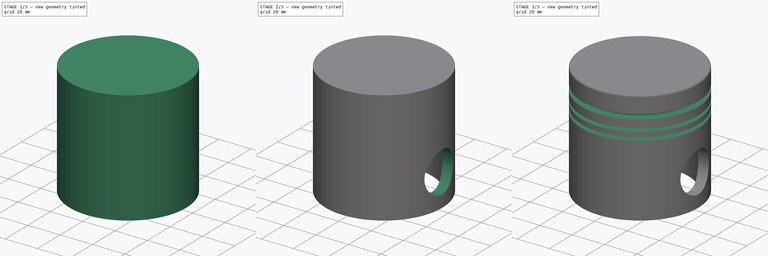
[diagram: build sequence overview — one tinted view per stage of 3, left to right]
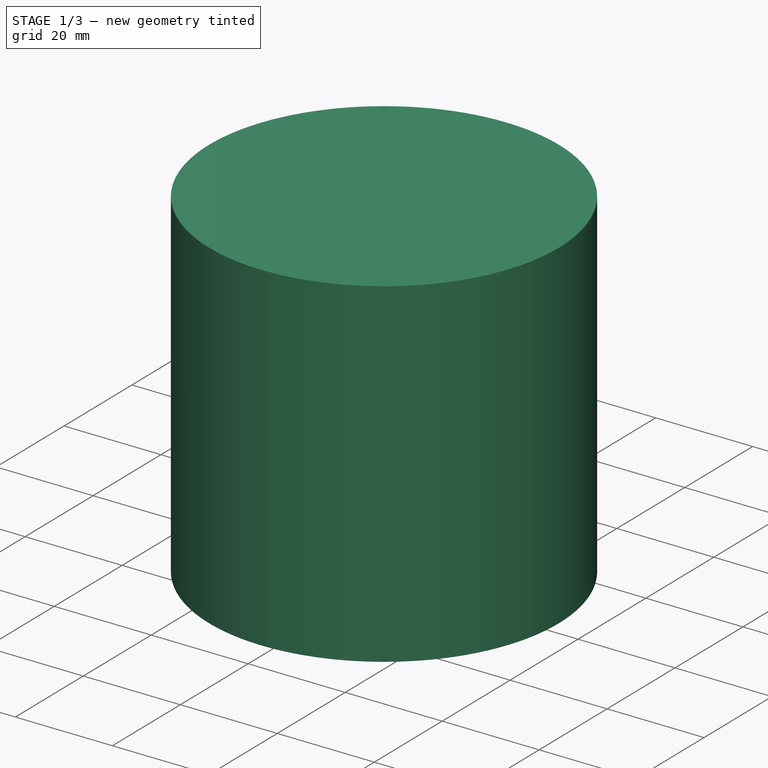
[diagram: stage 1 of 3 — iso view after this stage's code; geometry added in this stage tinted green]
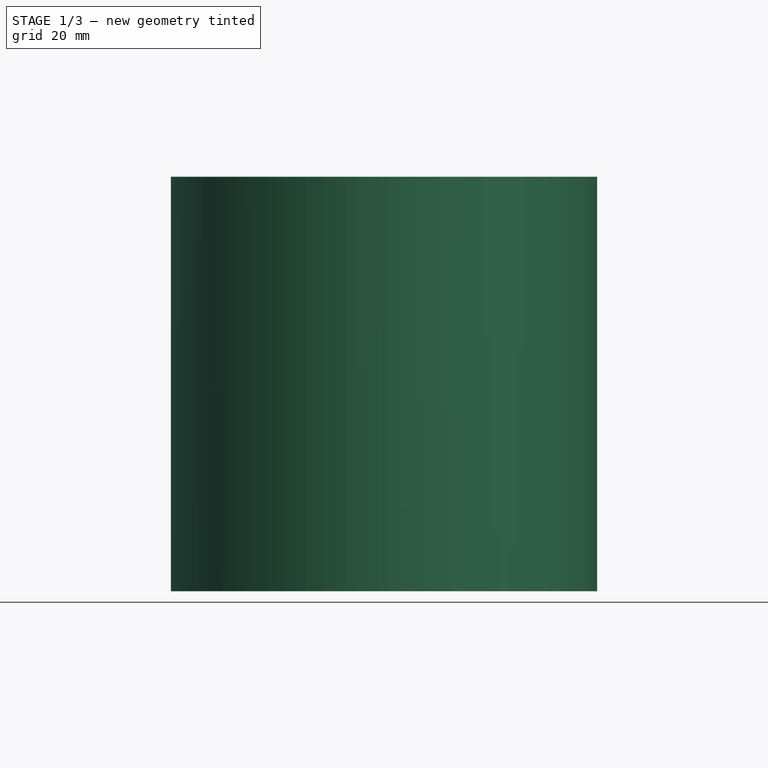
[diagram: stage 1 of 3 — front view after this stage's code; geometry added in this stage tinted green]
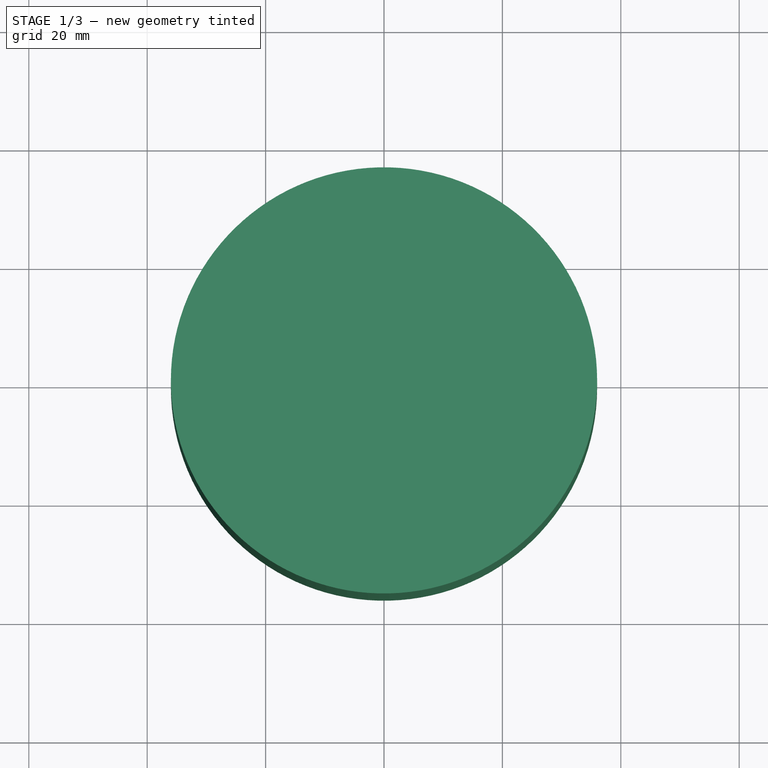
[diagram: stage 1 of 3 — top view after this stage's code; geometry added in this stage tinted green]
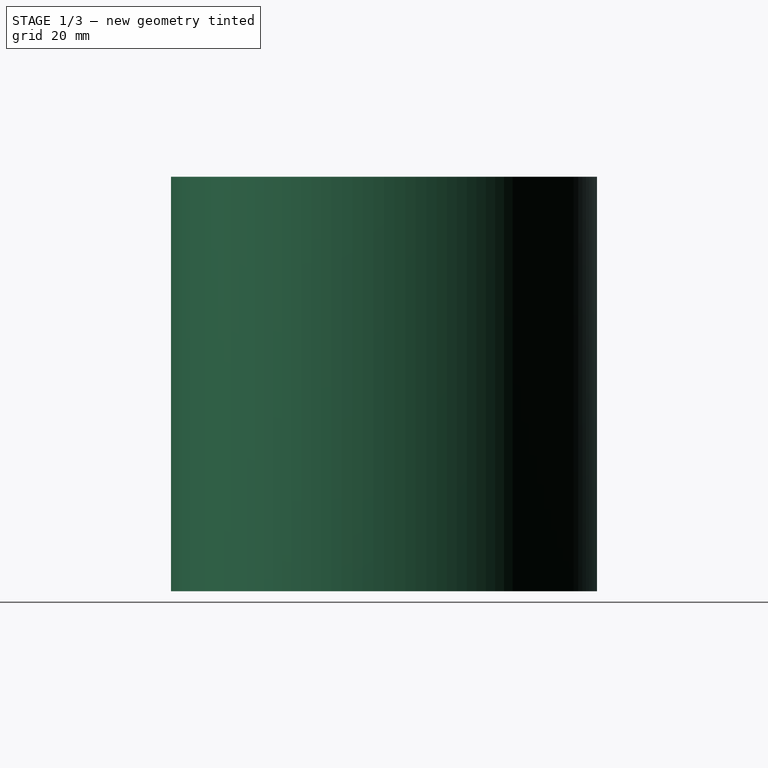
[diagram: stage 1 of 3 — right view after this stage's code; geometry added in this stage tinted green]
FCSTD DOCUMENT  (FreeCAD 1.0R39109 (Git))
Label: Piston
License: All rights reserved
LicenseURL: https://en.wikipedia.org/wiki/All_rights_reserved
objects: Sketcher::SketchObject×2, PartDesign::Pad×1, PartDesign::Hole×1, PartDesign::SubtractiveBox×1, PartDesign::SubtractiveCylinder×1, PartDesign::Fillet×1, PartDesign::Groove×1, PartDesign::Body×1
note: 23 computed .brp shape members not serialized (recipe doc carries the construction recipe); baked Part::Feature solids carry a one-line shape summary decoded from their .brp

FEATURE [Sketcher::SketchObject] Sketch
  ArcFitTolerance = 1e-06
  FullyConstrained = true
  MakeInternals = false
  sketch-geometry (1):
    g0: Circle CenterX=0 CenterY=0 CenterZ=0 NormalX=0 NormalY=0 NormalZ=1 AngleXU=0 Radius=36
  constraints (2):
    c: Diameter(g0) = 72
    c: Coincident(g0,g-1)
FEATURE [PartDesign::Pad] Pad
  Direction = (0,0,1)
  Length = 70
  Length2 = 10
  Profile = -> Sketch
  ReferenceAxis = -> Sketch [N_Axis]
  Refine = true
  Suppressed = false
  Type = 0
FEATURE [PartDesign::Hole] Hole
  BaseFeature = -> Pad
  CustomThreadClearance = 0
  Depth = 50
  DepthType = 0
  Diameter = 60
  DrillForDepth = false
  DrillPoint = 1
  DrillPointAngle = 118
  HoleCutCountersinkAngle = 90
  HoleCutCustomValues = false
  HoleCutDepth = 0
  HoleCutDiameter = 60.1
  HoleCutType = 0
  ModelThread = false
  Profile = -> Pad [Face2]
  Refine = true
  Suppressed = false
  Tapered = false
  TaperedAngle = 90
  ThreadClass = 0
  ThreadDepth = 50
  ThreadDepthType = 0
  ThreadDirection = 0
  ThreadFit = 0
  ThreadSize = 0
  ThreadType = 0
  Threaded = false
  UseCustomThreadClearance = false
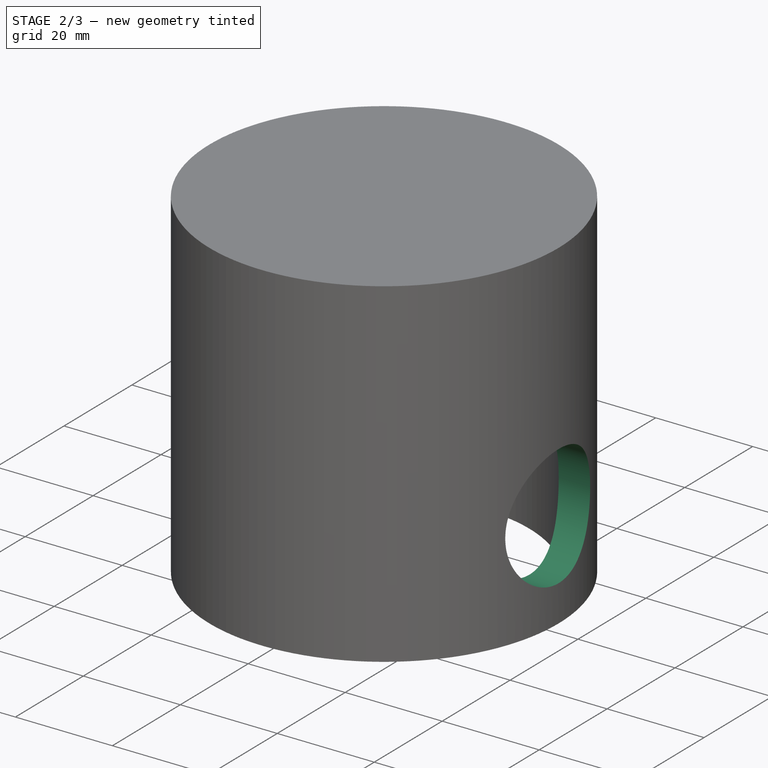
[diagram: stage 2 of 3 — iso view after this stage's code; geometry added in this stage tinted green]
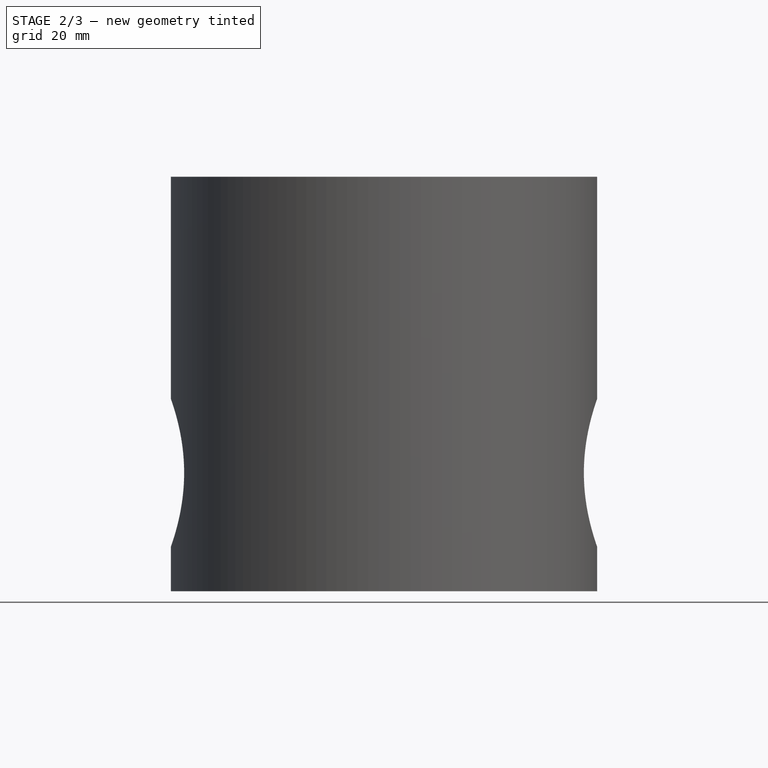
[diagram: stage 2 of 3 — front view after this stage's code; geometry added in this stage tinted green]
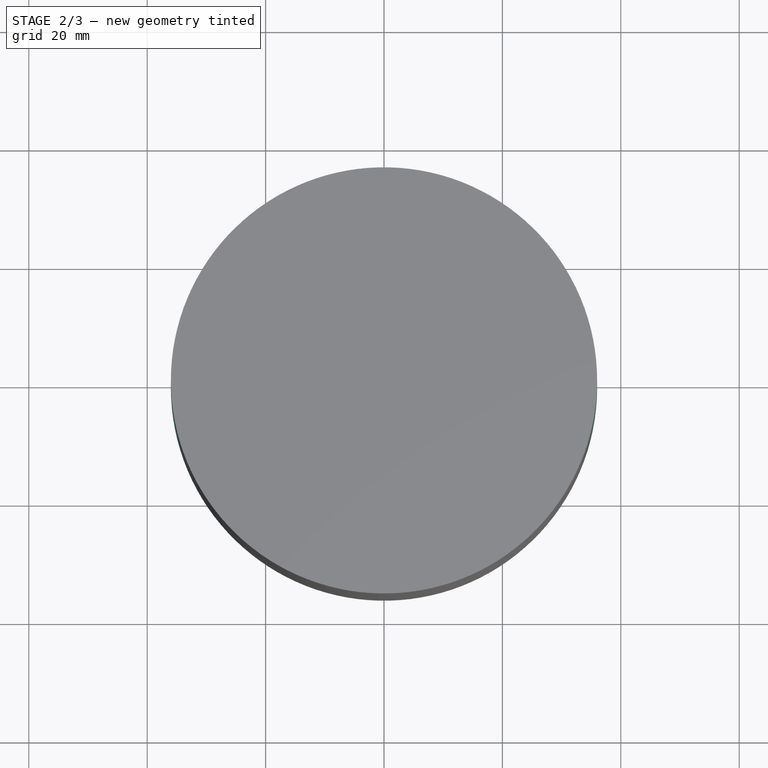
[diagram: stage 2 of 3 — top view after this stage's code; geometry added in this stage tinted green]
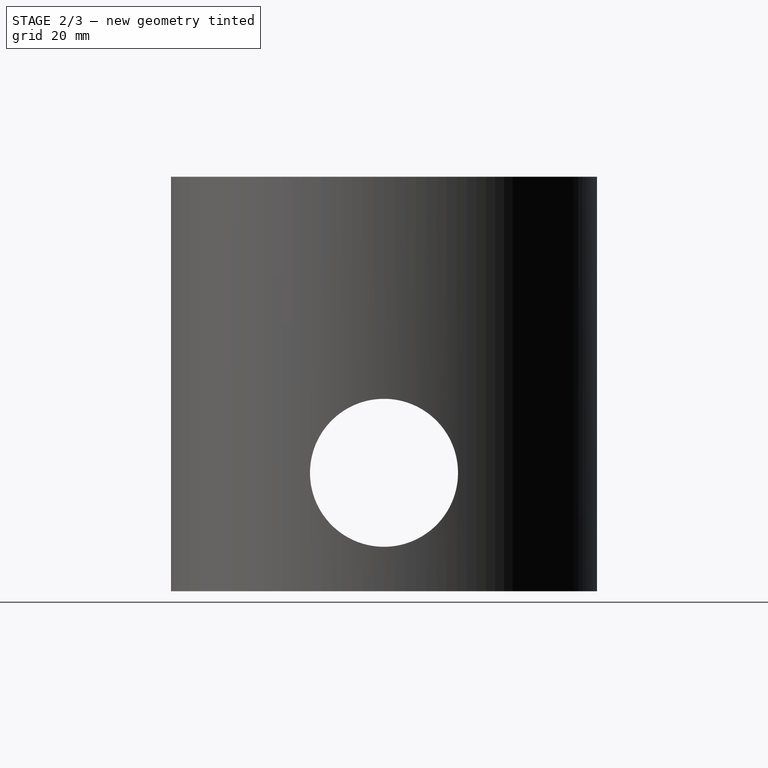
[diagram: stage 2 of 3 — right view after this stage's code; geometry added in this stage tinted green]
FEATURE [PartDesign::SubtractiveBox] Box
  AttacherType = Attacher::AttachEngine3D
  AttachmentOffset = pos=(80,0,0) rot=(0,0,1;0rad)
  AttachmentSupport = -> [YZ_Plane]
  BaseFeature = -> Hole
  Height = 10
  Length = 10
  MapMode = 5
  Placement = pos=(0,80,0) rot=(0.57735,0.57735,0.57735;2.0944rad)
  Refine = true
  Suppressed = false
  Width = 10
FEATURE [PartDesign::SubtractiveCylinder] Cylinder
  Angle = 360
  AttacherType = Attacher::AttachEngine3D
  AttachmentOffset = pos=(0,20,-36) rot=(0,0,1;0rad)
  AttachmentSupport = -> [YZ_Plane]
  BaseFeature = -> Box
  FirstAngle = 0
  Height = 72
  MapMode = 5
  Placement = pos=(-36,0,20) rot=(0.57735,0.57735,0.57735;2.0944rad)
  Radius = 12.5
  Refine = true
  SecondAngle = 0
  Suppressed = false
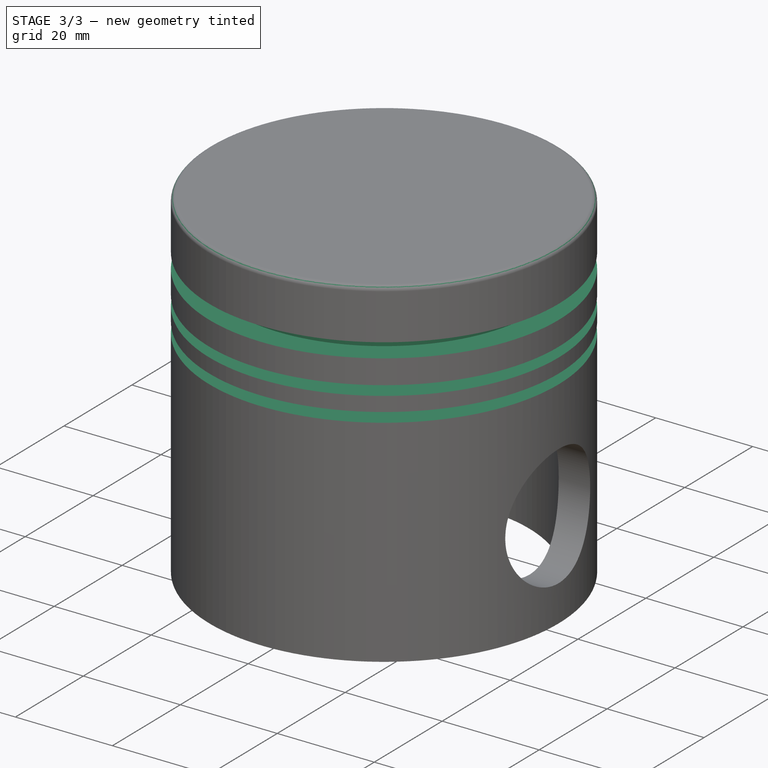
[diagram: stage 3 of 3 — iso view after this stage's code; geometry added in this stage tinted green]
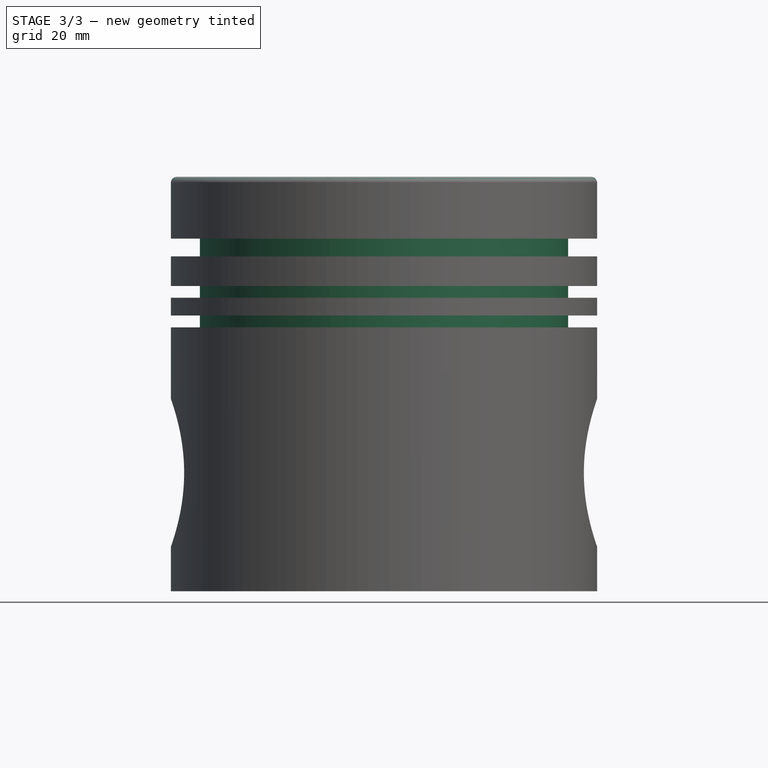
[diagram: stage 3 of 3 — front view after this stage's code; geometry added in this stage tinted green]
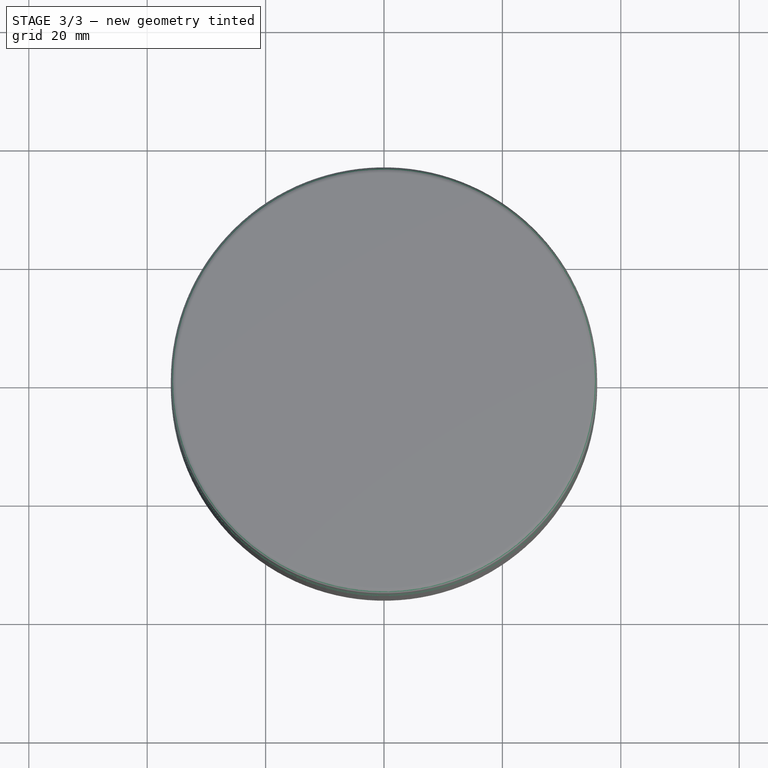
[diagram: stage 3 of 3 — top view after this stage's code; geometry added in this stage tinted green]
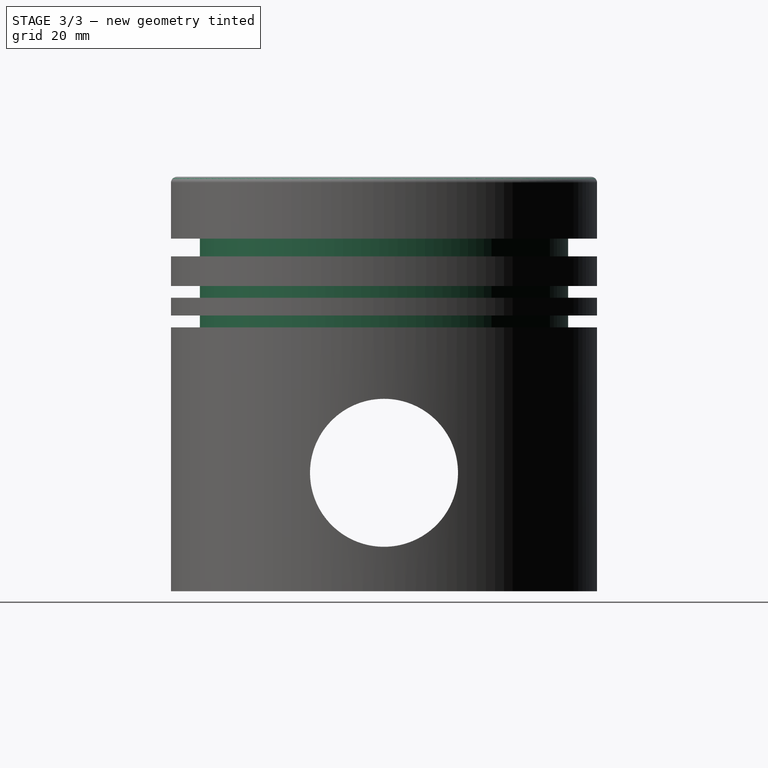
[diagram: stage 3 of 3 — right view after this stage's code; geometry added in this stage tinted green]
FEATURE [PartDesign::Fillet] Fillet
  Base = -> Cylinder [Edge5]
  BaseFeature = -> Cylinder
  Placement = pos=(-36,0,20) rot=(0.57735,0.57735,0.57735;2.0944rad)
  Radius = 1
  Refine = true
  SupportTransform = false
  Suppressed = false
  UseAllEdges = false
FEATURE [Sketcher::SketchObject] Sketch003
  ArcFitTolerance = 1e-06
  AttachmentOffset = pos=(23,0,36) rot=(0,0,1;0rad)
  AttachmentSupport = -> [Fillet]
  FullyConstrained = false
  MakeInternals = false
  MapMode = 2
  Placement = pos=(0,23,20) rot=(0.57735,0.57735,0.57735;2.0944rad)
  sketch-geometry (12):
    g0: LineSegment StartX=-59.1085 StartY=36.5612 StartZ=0 EndX=-54.1085 EndY=36.5612 EndZ=0
    g1: LineSegment StartX=-54.1085 StartY=36.5612 StartZ=0 EndX=-54.1085 EndY=39.5612 EndZ=0
    g2: LineSegment StartX=-54.1085 StartY=39.5612 StartZ=0 EndX=-59.1085 EndY=39.5612 EndZ=0
    g3: LineSegment StartX=-59.1085 StartY=39.5612 StartZ=0 EndX=-59.1085 EndY=36.5612 EndZ=0
    g4: LineSegment StartX=-59.1085 StartY=29.5612 StartZ=0 EndX=-54.1085 EndY=29.5612 EndZ=0
    g5: LineSegment StartX=-54.1085 StartY=29.5612 StartZ=0 EndX=-54.1085 EndY=31.5612 EndZ=0
    g6: LineSegment StartX=-54.1085 StartY=31.5612 StartZ=0 EndX=-59.1085 EndY=31.5612 EndZ=0
    g7: LineSegment StartX=-59.1085 StartY=31.5612 StartZ=0 EndX=-59.1085 EndY=29.5612 EndZ=0
    g8: LineSegment StartX=-59.1085 StartY=24.5612 StartZ=0 EndX=-54.1085 EndY=24.5612 EndZ=0
    g9: LineSegment StartX=-54.1085 StartY=24.5612 StartZ=0 EndX=-54.1085 EndY=26.5612 EndZ=0
    g10: LineSegment StartX=-54.1085 StartY=26.5612 StartZ=0 EndX=-59.1085 EndY=26.5612 EndZ=0
    g11: LineSegment StartX=-59.1085 StartY=26.5612 StartZ=0 EndX=-59.1085 EndY=24.5612 EndZ=0
  constraints (34):
    c: Coincident(g0,g1)
    c: Coincident(g1,g2)
    c: Coincident(g2,g3)
    c: Coincident(g3,g0)
    c: Horizontal(g0)
    c: Horizontal(g2)
    c: Vertical(g1)
    c: Vertical(g3)
    c: Coincident(g4,g5)
    c: Coincident(g5,g6)
    c: Coincident(g6,g7)
    c: Coincident(g7,g4)
    c: Horizontal(g4)
    c: Horizontal(g6)
    c: Vertical(g5)
    c: Vertical(g7)
    c: Coincident(g8,g9)
    c: Coincident(g9,g10)
    c: Coincident(g10,g11)
    c: Coincident(g11,g8)
    c: Horizontal(g8)
    c: Horizontal(g10)
    c: Vertical(g9)
    c: Vertical(g11)
    c: DistanceY(g3,g3) = 3
    c: DistanceY(g7,g7) = 2
    c: DistanceY(g11,g11) = 2
    c: Distance(g0,g6) = 5
    c: Distance(g4,g10) = 3
    c: DistanceX(g2,g2) = 5
    c: DistanceX(g6,g6) = 5
    c: DistanceX(g10,g10) = 5
    c: Vertical(g0,g4)
    c: Vertical(g4,g8)
FEATURE [PartDesign::Groove] Groove
  Angle = 360
  Angle2 = 60
  Axis = (1e-16,1e-16,1)
  Base = (0,0,0)
  BaseFeature = -> Fillet
  Placement = pos=(-36,0,20) rot=(0.57735,0.57735,0.57735;2.0944rad)
  Profile = -> Sketch003
  ReferenceAxis = -> Z_Axis
  Refine = true
  Reversed = true
  Suppressed = false
  Type = 0
FEATURE [PartDesign::Body] Body
  AllowCompound = false
  Group = -> [Sketch,Pad,Hole,Box,Cylinder,Fillet,Sketch003,Groove]
  Origin = -> Origin
  Tip = -> Groove
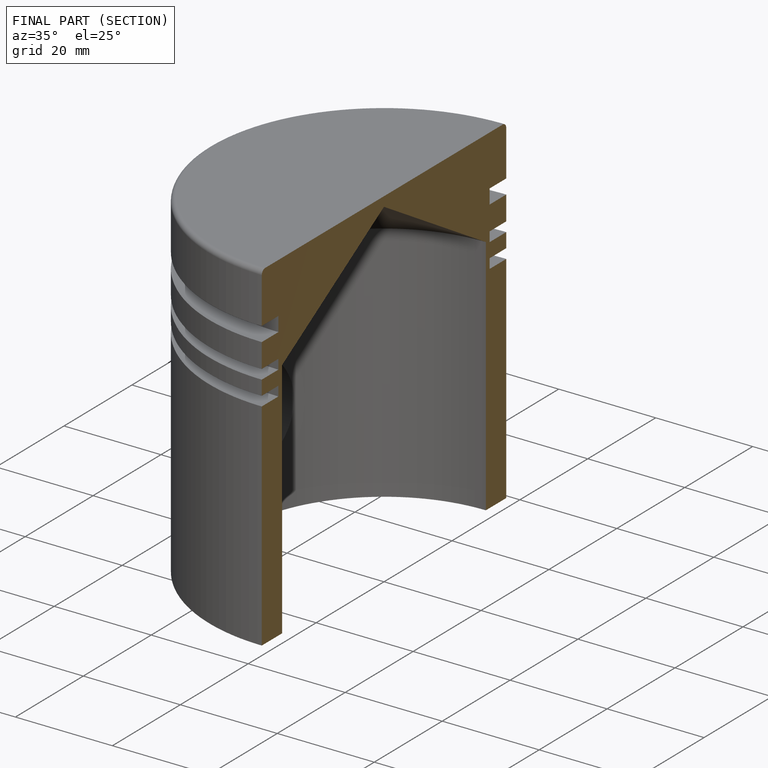
[diagram: finished part — half-section view (interior)]
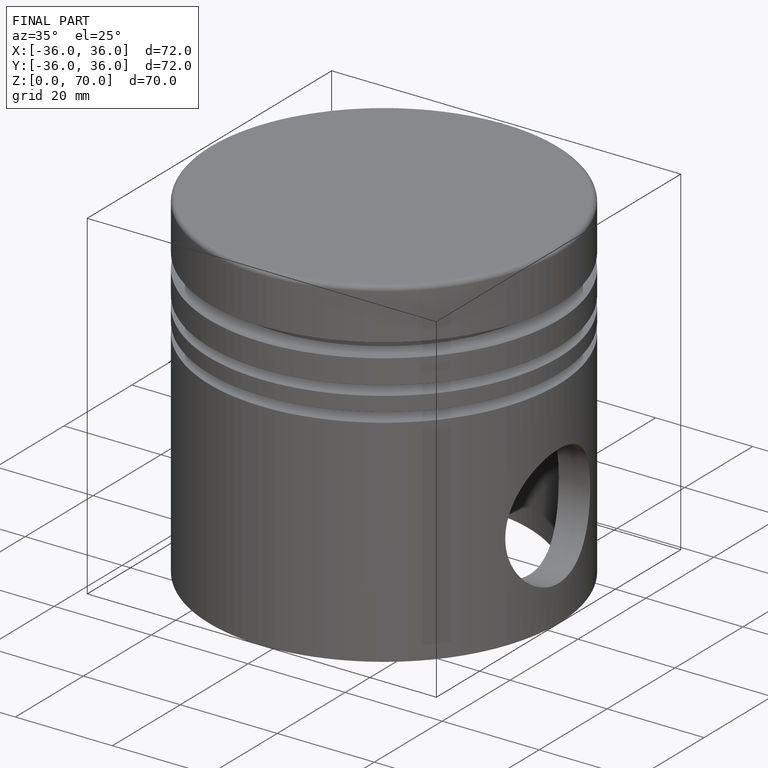
[diagram: finished part — iso view with bounding-box wireframe]
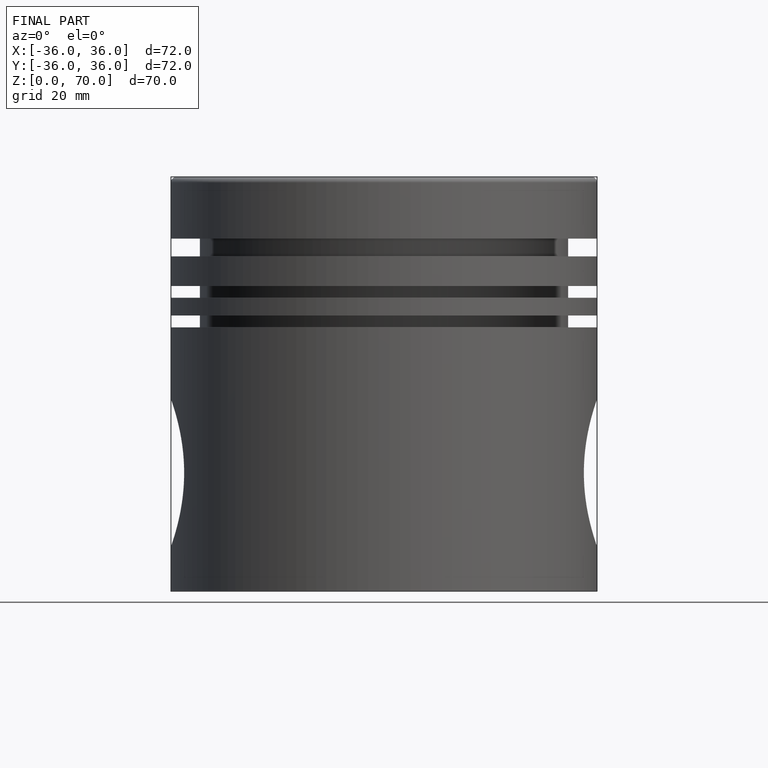
[diagram: finished part — front view with bounding-box wireframe]
